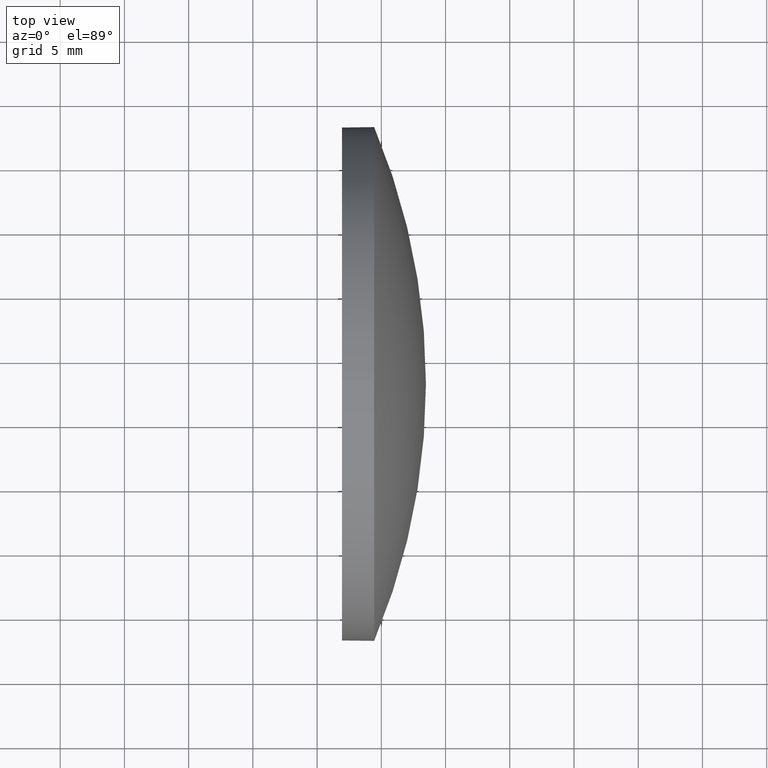
[diagram: clean part render]
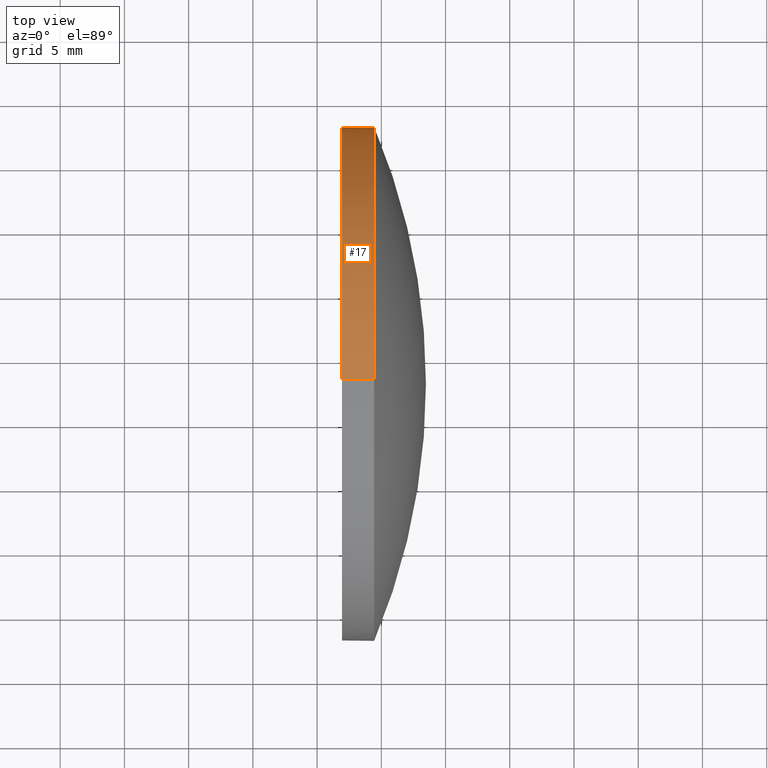
[diagram: same view with one face highlighted and labeled with its STEP entity id]
A machine part, top view. The second image highlights one B-rep face of the part: STEP entity #17.
In plain terms, the highlighted cylindrical surface (partial cylindrical patch) has radius 20 mm, axis along (-1, -0, -0).
Its self-contained STEP definition (entity closure, byte-faithful):
#5 = CIRCLE ( 'NONE', #183, 20.00000000000000400 ) ;
#7 = DIRECTION ( 'NONE',  ( 0.0000000000000000000, 0.0000000000000000000, 1.000000000000000000 ) ) ;
#17 = ADVANCED_FACE ( 'NONE', ( #91 ), #139, .T. ) ;
#20 = CARTESIAN_POINT ( 'NONE',  ( 499.4433268936313700, 28.03450689245858400, -20.00000000000000400 ) ) ;
#21 = VERTEX_POINT ( 'NONE', #152 ) ;
#30 = ORIENTED_EDGE ( 'NONE', *, *, #69, .T. ) ;
#31 = CARTESIAN_POINT ( 'NONE',  ( 499.4433268936313700, 28.03450689245858000, 0.0000000000000000000 ) ) ;
#33 = DIRECTION ( 'NONE',  ( -1.000000000000000000, -0.0000000000000000000, -0.0000000000000000000 ) ) ;
#34 = DIRECTION ( 'NONE',  ( 0.0000000000000000000, 0.0000000000000000000, 1.000000000000000000 ) ) ;
#37 = CARTESIAN_POINT ( 'NONE',  ( 499.4433268936313700, 28.03450689245858000, 0.0000000000000000000 ) ) ;
#40 = CIRCLE ( 'NONE', #174, 20.00000000000000400 ) ;
#41 = VERTEX_POINT ( 'NONE', #74 ) ;
#43 = ORIENTED_EDGE ( 'NONE', *, *, #85, .T. ) ;
#47 = VERTEX_POINT ( 'NONE', #124 ) ;
#52 = VECTOR ( 'NONE', #77, 1000.000000000000000 ) ;
#59 = DIRECTION ( 'NONE',  ( 0.0000000000000000000, 0.0000000000000000000, 1.000000000000000000 ) ) ;
#60 = CARTESIAN_POINT ( 'NONE',  ( 496.9433268936313700, 28.03450689245858400, -20.00000000000000400 ) ) ;
#61 = DIRECTION ( 'NONE',  ( -1.000000000000000000, -0.0000000000000000000, -0.0000000000000000000 ) ) ;
#63 = CARTESIAN_POINT ( 'NONE',  ( 496.9433268936313700, 28.03450689245858000, 0.0000000000000000000 ) ) ;
#66 = DIRECTION ( 'NONE',  ( -1.000000000000000000, -0.0000000000000000000, -0.0000000000000000000 ) ) ;
#68 = AXIS2_PLACEMENT_3D ( 'NONE', #177, #61, #59 ) ;
#69 = EDGE_CURVE ( 'NONE', #135, #98, #112, .T. ) ;
#74 = CARTESIAN_POINT ( 'NONE',  ( 496.9433268936313700, 28.03450689245858000, 20.00000000000000400 ) ) ;
#77 = DIRECTION ( 'NONE',  ( -1.000000000000000000, -0.0000000000000000000, -0.0000000000000000000 ) ) ;
#79 = CIRCLE ( 'NONE', #158, 20.00000000000000400 ) ;
#82 = DIRECTION ( 'NONE',  ( -1.000000000000000000, -0.0000000000000000000, -0.0000000000000000000 ) ) ;
#85 = EDGE_CURVE ( 'NONE', #47, #135, #40, .T. ) ;
#88 = CARTESIAN_POINT ( 'NONE',  ( 492.9783732826454100, 28.03450689245858000, 20.00000000000000400 ) ) ;
#91 = FACE_OUTER_BOUND ( 'NONE', #116, .T. ) ;
#98 = VERTEX_POINT ( 'NONE', #60 ) ;
#108 = VECTOR ( 'NONE', #33, 1000.000000000000000 ) ;
#110 = ORIENTED_EDGE ( 'NONE', *, *, #151, .F. ) ;
#112 = LINE ( 'NONE', #122, #52 ) ;
#116 = EDGE_LOOP ( 'NONE', ( #43, #30, #125, #110, #172 ) ) ;
#118 = EDGE_CURVE ( 'NONE', #21, #47, #5, .T. ) ;
#122 = CARTESIAN_POINT ( 'NONE',  ( 492.9783732826454100, 28.03450689245858400, -20.00000000000000400 ) ) ;
#124 = CARTESIAN_POINT ( 'NONE',  ( 499.4433268936313700, 48.03450689245857300, 2.449293598294701800E-015 ) ) ;
#125 = ORIENTED_EDGE ( 'NONE', *, *, #155, .F. ) ;
#126 = DIRECTION ( 'NONE',  ( -1.000000000000000000, -0.0000000000000000000, -0.0000000000000000000 ) ) ;
#135 = VERTEX_POINT ( 'NONE', #20 ) ;
#139 = CYLINDRICAL_SURFACE ( 'NONE', #68, 20.00000000000000400 ) ;
#141 = DIRECTION ( 'NONE',  ( 0.0000000000000000000, 0.0000000000000000000, 1.000000000000000000 ) ) ;
#151 = EDGE_CURVE ( 'NONE', #21, #41, #170, .T. ) ;
#152 = CARTESIAN_POINT ( 'NONE',  ( 499.4433268936313700, 28.03450689245858000, 20.00000000000000400 ) ) ;
#155 = EDGE_CURVE ( 'NONE', #41, #98, #79, .T. ) ;
#158 = AXIS2_PLACEMENT_3D ( 'NONE', #63, #66, #34 ) ;
#170 = LINE ( 'NONE', #88, #108 ) ;
#172 = ORIENTED_EDGE ( 'NONE', *, *, #118, .T. ) ;
#174 = AXIS2_PLACEMENT_3D ( 'NONE', #31, #126, #141 ) ;
#177 = CARTESIAN_POINT ( 'NONE',  ( 492.9783732826454100, 28.03450689245858000, 0.0000000000000000000 ) ) ;
#183 = AXIS2_PLACEMENT_3D ( 'NONE', #37, #82, #7 ) ;